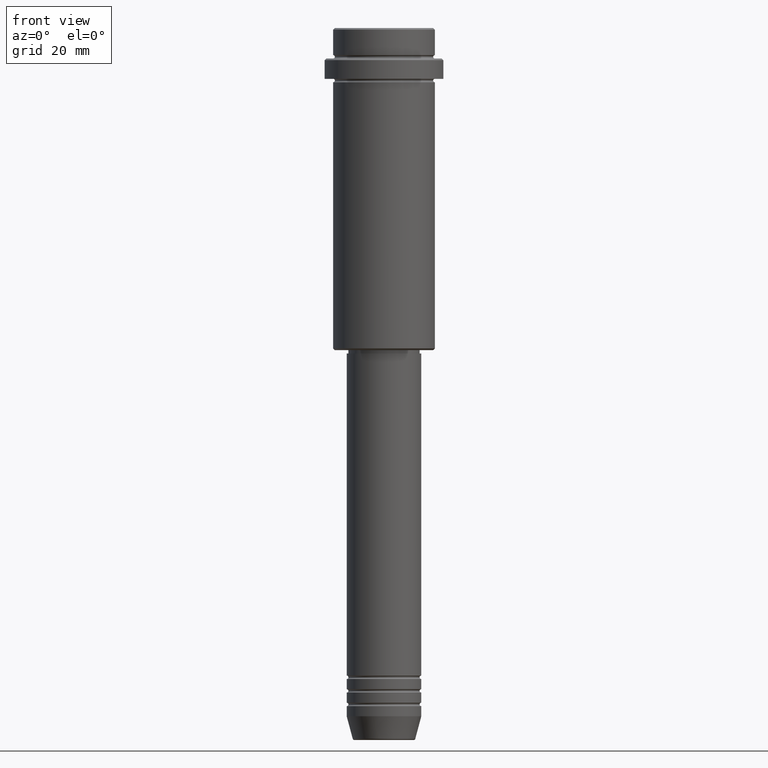
[diagram: clean part render]
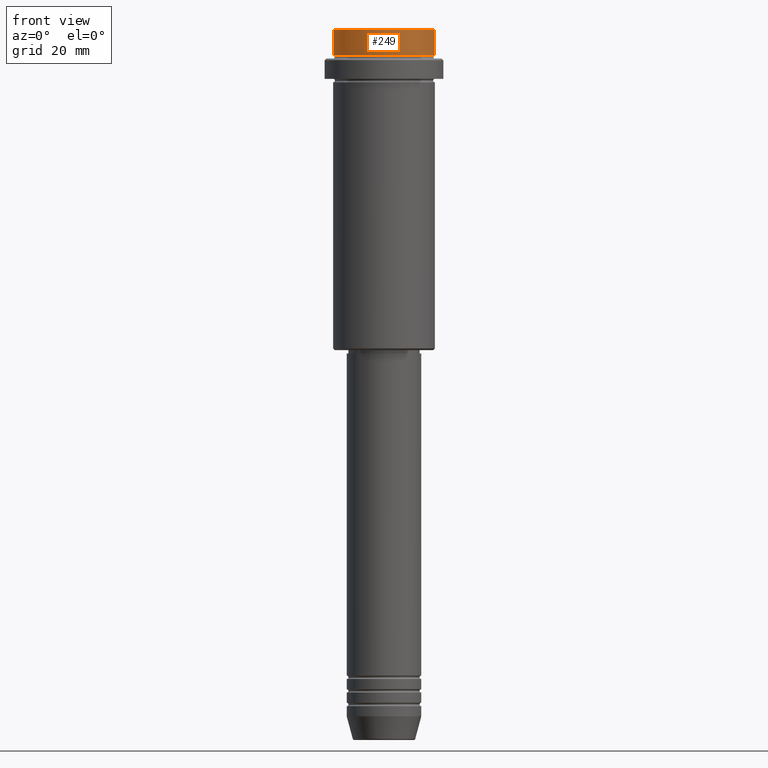
[diagram: same view with one face highlighted and labeled with its STEP entity id]
A machine part, front view. The second image highlights one B-rep face of the part: STEP entity #249.
In plain terms, the highlighted cylindrical surface (partial cylindrical patch) has radius 15 mm, axis along (-0, -0, 1).
Its self-contained STEP definition (entity closure, byte-faithful):
#19 = AXIS2_PLACEMENT_3D ( 'NONE', #1338, #276, #832 ) ;
#25 = LINE ( 'NONE', #674, #522 ) ;
#44 = DIRECTION ( 'NONE',  ( -0.000000000000000000, -0.000000000000000000, 1.000000000000000000 ) ) ;
#90 = AXIS2_PLACEMENT_3D ( 'NONE', #1204, #44, #1009 ) ;
#95 = CARTESIAN_POINT ( 'NONE',  ( -15.00000000000000000, 1.836970198721029589E-15, -7.999999999999998224 ) ) ;
#102 = VERTEX_POINT ( 'NONE', #194 ) ;
#109 = VECTOR ( 'NONE', #703, 1000.000000000000000 ) ;
#122 = CARTESIAN_POINT ( 'NONE',  ( 15.00000000000000000, 0.000000000000000000, 0.000000000000000000 ) ) ;
#132 = AXIS2_PLACEMENT_3D ( 'NONE', #1286, #866, #206 ) ;
#194 = CARTESIAN_POINT ( 'NONE',  ( 15.00000000000000000, 0.000000000000000000, -0.5000000000000108802 ) ) ;
#206 = DIRECTION ( 'NONE',  ( 1.000000000000000000, 0.000000000000000000, 0.000000000000000000 ) ) ;
#249 = ADVANCED_FACE ( 'NONE', ( #1282 ), #1397, .T. ) ;
#276 = DIRECTION ( 'NONE',  ( 0.000000000000000000, 0.000000000000000000, -1.000000000000000000 ) ) ;
#344 = DIRECTION ( 'NONE',  ( -0.000000000000000000, -0.000000000000000000, 1.000000000000000000 ) ) ;
#383 = CARTESIAN_POINT ( 'NONE',  ( -15.00000000000000000, 1.836970198721029589E-15, -0.5000000000000108802 ) ) ;
#522 = VECTOR ( 'NONE', #344, 1000.000000000000000 ) ;
#548 = ORIENTED_EDGE ( 'NONE', *, *, #807, .T. ) ;
#550 = EDGE_CURVE ( 'NONE', #909, #102, #897, .T. ) ;
#571 = CARTESIAN_POINT ( 'NONE',  ( 15.00000000000000000, 0.000000000000000000, -7.999999999999998224 ) ) ;
#585 = CIRCLE ( 'NONE', #19, 15.00000000000000000 ) ;
#631 = CIRCLE ( 'NONE', #90, 15.00000000000000000 ) ;
#647 = ORIENTED_EDGE ( 'NONE', *, *, #550, .T. ) ;
#674 = CARTESIAN_POINT ( 'NONE',  ( -15.00000000000000000, 1.836970198721029589E-15, 0.000000000000000000 ) ) ;
#703 = DIRECTION ( 'NONE',  ( -0.000000000000000000, -0.000000000000000000, 1.000000000000000000 ) ) ;
#759 = EDGE_CURVE ( 'NONE', #102, #1152, #585, .T. ) ;
#807 = EDGE_CURVE ( 'NONE', #1141, #909, #631, .T. ) ;
#832 = DIRECTION ( 'NONE',  ( 1.000000000000000000, 0.000000000000000000, 0.000000000000000000 ) ) ;
#862 = EDGE_LOOP ( 'NONE', ( #1192, #548, #647, #1148 ) ) ;
#866 = DIRECTION ( 'NONE',  ( -0.000000000000000000, -0.000000000000000000, 1.000000000000000000 ) ) ;
#897 = LINE ( 'NONE', #122, #109 ) ;
#909 = VERTEX_POINT ( 'NONE', #571 ) ;
#1009 = DIRECTION ( 'NONE',  ( 1.000000000000000000, 0.000000000000000000, 0.000000000000000000 ) ) ;
#1141 = VERTEX_POINT ( 'NONE', #95 ) ;
#1148 = ORIENTED_EDGE ( 'NONE', *, *, #759, .T. ) ;
#1152 = VERTEX_POINT ( 'NONE', #383 ) ;
#1192 = ORIENTED_EDGE ( 'NONE', *, *, #1389, .F. ) ;
#1204 = CARTESIAN_POINT ( 'NONE',  ( 0.000000000000000000, 0.000000000000000000, -7.999999999999998224 ) ) ;
#1282 = FACE_OUTER_BOUND ( 'NONE', #862, .T. ) ;
#1286 = CARTESIAN_POINT ( 'NONE',  ( 0.000000000000000000, 0.000000000000000000, 0.000000000000000000 ) ) ;
#1338 = CARTESIAN_POINT ( 'NONE',  ( 0.000000000000000000, 0.000000000000000000, -0.5000000000000108802 ) ) ;
#1389 = EDGE_CURVE ( 'NONE', #1141, #1152, #25, .T. ) ;
#1397 = CYLINDRICAL_SURFACE ( 'NONE', #132, 15.00000000000000000 ) ;